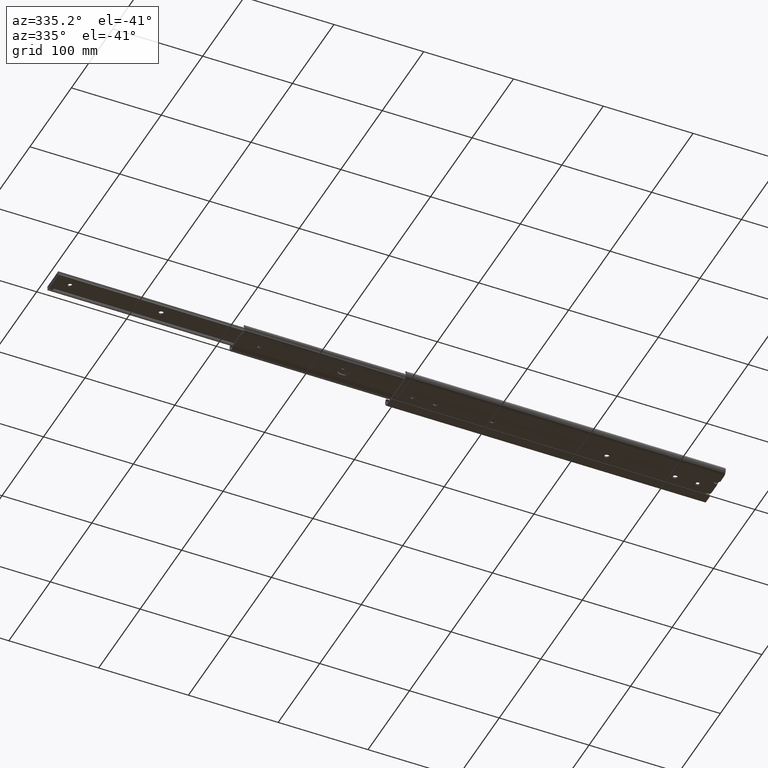
[diagram: clean part render]
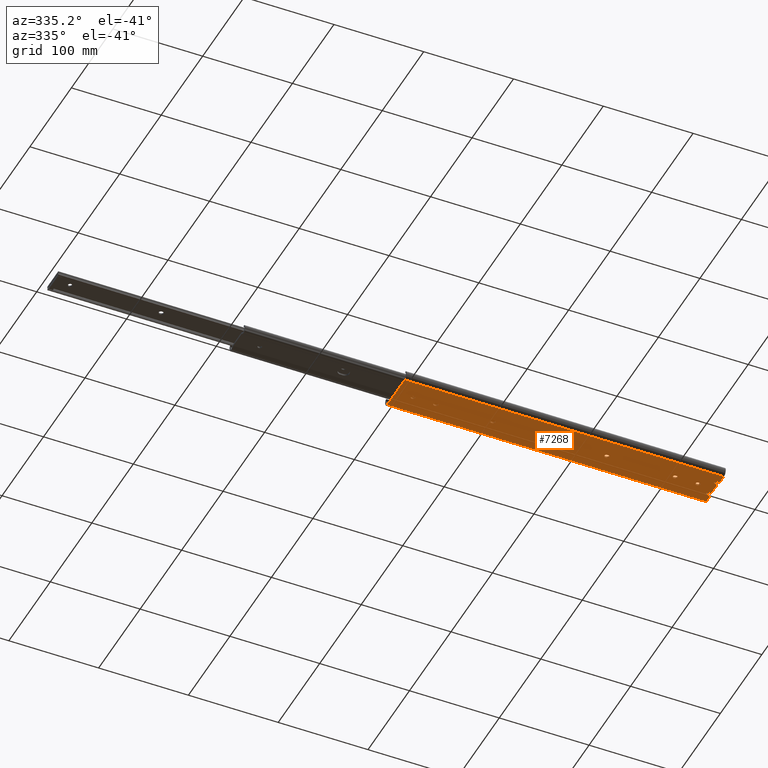
[diagram: same view with one face highlighted and labeled with its STEP entity id]
A machine part, auxiliary view. The second image highlights one B-rep face of the part: STEP entity #7268.
In plain terms, the highlighted planar face has unit normal (0, 0, 1).
Its self-contained STEP definition (entity closure, byte-faithful):
#10 = VERTEX_POINT ( 'NONE', #1489 ) ;
#30 = AXIS2_PLACEMENT_3D ( 'NONE', #6295, #2678, #6875 ) ;
#41 = DIRECTION ( 'NONE',  ( 0.0000000000000000000, 0.0000000000000000000, 1.000000000000000000 ) ) ;
#44 = ORIENTED_EDGE ( 'NONE', *, *, #5658, .F. ) ;
#54 = DIRECTION ( 'NONE',  ( 0.0000000000000000000, 1.000000000000000000, 0.0000000000000000000 ) ) ;
#74 = CARTESIAN_POINT ( 'NONE',  ( 108.3999999999999900, 5.374174154884625500E-015, 0.0000000000000000000 ) ) ;
#80 = CARTESIAN_POINT ( 'NONE',  ( 235.4000000000000100, 5.374174154884625500E-015, 0.0000000000000000000 ) ) ;
#108 = DIRECTION ( 'NONE',  ( -1.000000000000000000, 5.102127870520000300E-016, 0.0000000000000000000 ) ) ;
#123 = DIRECTION ( 'NONE',  ( 1.000000000000000000, 0.0000000000000000000, 0.0000000000000000000 ) ) ;
#140 = LINE ( 'NONE', #7764, #1760 ) ;
#206 = DIRECTION ( 'NONE',  ( 0.0000000000000000000, 0.0000000000000000000, 1.000000000000000000 ) ) ;
#235 = ORIENTED_EDGE ( 'NONE', *, *, #5246, .T. ) ;
#241 = DIRECTION ( 'NONE',  ( 1.000000000000000000, 0.0000000000000000000, 0.0000000000000000000 ) ) ;
#244 = CARTESIAN_POINT ( 'NONE',  ( 107.5999999999999900, 5.325188282918731300E-015, 0.0000000000000000000 ) ) ;
#247 = VECTOR ( 'NONE', #6794, 1000.000000000000000 ) ;
#283 = CARTESIAN_POINT ( 'NONE',  ( 354.6999999999999900, 7.349999999999999600, 0.0000000000000000000 ) ) ;
#297 = EDGE_CURVE ( 'NONE', #6652, #2427, #6951, .T. ) ;
#303 = LINE ( 'NONE', #2958, #3525 ) ;
#305 = CARTESIAN_POINT ( 'NONE',  ( 107.5999999999999900, 2.250000000000000000, 0.0000000000000000000 ) ) ;
#314 = CARTESIAN_POINT ( 'NONE',  ( 311.5999999999999700, -2.249999999999994700, 0.0000000000000000000 ) ) ;
#329 = CARTESIAN_POINT ( 'NONE',  ( 337.0000000000000000, 5.374174154884625500E-015, 0.0000000000000000000 ) ) ;
#333 = CARTESIAN_POINT ( 'NONE',  ( 235.4000000000000100, 2.250000000000000000, 0.0000000000000000000 ) ) ;
#340 = EDGE_CURVE ( 'NONE', #7705, #2192, #1934, .T. ) ;
#349 = CARTESIAN_POINT ( 'NONE',  ( 354.6999999999999900, -7.349999999999999600, 0.0000000000000000000 ) ) ;
#362 = AXIS2_PLACEMENT_3D ( 'NONE', #5942, #2322, #6551 ) ;
#363 = ORIENTED_EDGE ( 'NONE', *, *, #1802, .T. ) ;
#366 = FACE_BOUND ( 'NONE', #2218, .T. ) ;
#387 = DIRECTION ( 'NONE',  ( 0.0000000000000000000, 0.0000000000000000000, 1.000000000000000000 ) ) ;
#466 = VERTEX_POINT ( 'NONE', #6326 ) ;
#519 = DIRECTION ( 'NONE',  ( -0.0000000000000000000, -0.0000000000000000000, -1.000000000000000000 ) ) ;
#554 = EDGE_CURVE ( 'NONE', #3889, #6654, #790, .T. ) ;
#555 = VERTEX_POINT ( 'NONE', #1237 ) ;
#558 = FACE_BOUND ( 'NONE', #2100, .T. ) ;
#565 = ORIENTED_EDGE ( 'NONE', *, *, #5283, .T. ) ;
#608 = AXIS2_PLACEMENT_3D ( 'NONE', #6606, #5415, #1163 ) ;
#632 = VERTEX_POINT ( 'NONE', #7319 ) ;
#641 = CARTESIAN_POINT ( 'NONE',  ( 352.1999999999999900, -7.349999999999999600, 0.0000000000000000000 ) ) ;
#650 = AXIS2_PLACEMENT_3D ( 'NONE', #4810, #1179, #5435 ) ;
#664 = VERTEX_POINT ( 'NONE', #3169 ) ;
#677 = EDGE_CURVE ( 'NONE', #4819, #3727, #2944, .T. ) ;
#686 = VERTEX_POINT ( 'NONE', #2579 ) ;
#692 = DIRECTION ( 'NONE',  ( 1.000000000000000000, 0.0000000000000000000, 0.0000000000000000000 ) ) ;
#697 = DIRECTION ( 'NONE',  ( 1.000000000000000000, 0.0000000000000000000, 0.0000000000000000000 ) ) ;
#707 = EDGE_CURVE ( 'NONE', #632, #7287, #4167, .T. ) ;
#710 = ORIENTED_EDGE ( 'NONE', *, *, #5827, .T. ) ;
#735 = ORIENTED_EDGE ( 'NONE', *, *, #4755, .F. ) ;
#738 = FACE_BOUND ( 'NONE', #6088, .T. ) ;
#740 = CARTESIAN_POINT ( 'NONE',  ( 310.7999999999999500, -2.250000000000000000, 0.0000000000000000000 ) ) ;
#787 = VERTEX_POINT ( 'NONE', #1279 ) ;
#790 = CIRCLE ( 'NONE', #608, 2.250000000000001800 ) ;
#811 = CARTESIAN_POINT ( 'NONE',  ( 310.7999999999999500, -2.250000000000000000, 0.0000000000000000000 ) ) ;
#823 = EDGE_LOOP ( 'NONE', ( #7429, #4286, #7693, #7334, #5019 ) ) ;
#861 = DIRECTION ( 'NONE',  ( 1.000000000000000000, 0.0000000000000000000, 0.0000000000000000000 ) ) ;
#927 = DIRECTION ( 'NONE',  ( 0.0000000000000000000, 1.000000000000000000, 0.0000000000000000000 ) ) ;
#948 = DIRECTION ( 'NONE',  ( 1.000000000000000000, 0.0000000000000000000, 0.0000000000000000000 ) ) ;
#969 = VECTOR ( 'NONE', #1588, 1000.000000000000000 ) ;
#984 = AXIS2_PLACEMENT_3D ( 'NONE', #2725, #6938, #3317 ) ;
#992 = AXIS2_PLACEMENT_3D ( 'NONE', #3162, #7388, #3767 ) ;
#1009 = ORIENTED_EDGE ( 'NONE', *, *, #1147, .F. ) ;
#1010 = ORIENTED_EDGE ( 'NONE', *, *, #297, .T. ) ;
#1032 = AXIS2_PLACEMENT_3D ( 'NONE', #6221, #2601, #6802 ) ;
#1080 = AXIS2_PLACEMENT_3D ( 'NONE', #329, #4582, #948 ) ;
#1094 = VERTEX_POINT ( 'NONE', #6650 ) ;
#1138 = DIRECTION ( 'NONE',  ( 1.000000000000000000, 0.0000000000000000000, 0.0000000000000000000 ) ) ;
#1147 = EDGE_CURVE ( 'NONE', #2517, #7010, #6155, .T. ) ;
#1157 = VERTEX_POINT ( 'NONE', #6701 ) ;
#1162 = DIRECTION ( 'NONE',  ( -1.000000000000000000, -0.0000000000000000000, -0.0000000000000000000 ) ) ;
#1163 = DIRECTION ( 'NONE',  ( 1.000000000000000000, 0.0000000000000000000, 0.0000000000000000000 ) ) ;
#1167 = EDGE_CURVE ( 'NONE', #4542, #5247, #1315, .T. ) ;
#1174 = AXIS2_PLACEMENT_3D ( 'NONE', #7165, #3555, #7773 ) ;
#1179 = DIRECTION ( 'NONE',  ( 0.0000000000000000000, 0.0000000000000000000, 1.000000000000000000 ) ) ;
#1203 = CARTESIAN_POINT ( 'NONE',  ( 310.7999999999999500, 5.325188282918731300E-015, 0.0000000000000000000 ) ) ;
#1237 = CARTESIAN_POINT ( 'NONE',  ( 350.1999999999999900, -9.349999999999999600, 0.0000000000000000000 ) ) ;
#1241 = LINE ( 'NONE', #2226, #2681 ) ;
#1274 = CARTESIAN_POINT ( 'NONE',  ( 352.1999999999999900, -9.349999999999999600, 0.0000000000000000000 ) ) ;
#1279 = CARTESIAN_POINT ( 'NONE',  ( 355.6000000000000200, -13.34999999999999800, 0.0000000000000000000 ) ) ;
#1287 = CIRCLE ( 'NONE', #30, 2.249999999999974200 ) ;
#1315 = CIRCLE ( 'NONE', #5213, 2.250000000000001800 ) ;
#1335 = EDGE_LOOP ( 'NONE', ( #44, #2311, #5457, #235, #2739, #7566, #735, #5588, #4183, #6339, #1852, #5055, #4115, #1009, #1918, #3447 ) ) ;
#1343 = EDGE_CURVE ( 'NONE', #3120, #5017, #6251, .T. ) ;
#1365 = DIRECTION ( 'NONE',  ( 0.0000000000000000000, 0.0000000000000000000, 1.000000000000000000 ) ) ;
#1398 = EDGE_CURVE ( 'NONE', #5916, #4819, #7454, .T. ) ;
#1401 = LINE ( 'NONE', #6402, #7635 ) ;
#1483 = ORIENTED_EDGE ( 'NONE', *, *, #5015, .T. ) ;
#1485 = EDGE_CURVE ( 'NONE', #3300, #1094, #3674, .T. ) ;
#1489 = CARTESIAN_POINT ( 'NONE',  ( 353.6000000000000200, 11.34999999999999800, 0.0000000000000000000 ) ) ;
#1534 = PLANE ( 'NONE',  #6205 ) ;
#1571 = CARTESIAN_POINT ( 'NONE',  ( 350.1999999999999900, 9.349999999999999600, 0.0000000000000000000 ) ) ;
#1588 = DIRECTION ( 'NONE',  ( -1.000000000000000000, -5.102127870520000300E-016, 0.0000000000000000000 ) ) ;
#1651 = LINE ( 'NONE', #3355, #6083 ) ;
#1703 = VERTEX_POINT ( 'NONE', #7399 ) ;
#1717 = VECTOR ( 'NONE', #6856, 1000.000000000000000 ) ;
#1760 = VECTOR ( 'NONE', #1138, 1000.000000000000000 ) ;
#1777 = AXIS2_PLACEMENT_3D ( 'NONE', #7491, #3876, #241 ) ;
#1791 = AXIS2_PLACEMENT_3D ( 'NONE', #2625, #6830, #3212 ) ;
#1802 = EDGE_CURVE ( 'NONE', #6255, #6652, #6432, .T. ) ;
#1815 = VECTOR ( 'NONE', #108, 1000.000000000000000 ) ;
#1816 = DIRECTION ( 'NONE',  ( 1.000000000000000000, 0.0000000000000000000, 0.0000000000000000000 ) ) ;
#1820 = CARTESIAN_POINT ( 'NONE',  ( 352.1999999999999900, -7.350000000000000500, 0.0000000000000000000 ) ) ;
#1823 = EDGE_CURVE ( 'NONE', #5027, #7287, #1401, .T. ) ;
#1852 = ORIENTED_EDGE ( 'NONE', *, *, #677, .T. ) ;
#1884 = DIRECTION ( 'NONE',  ( 1.000000000000000000, 0.0000000000000000000, 0.0000000000000000000 ) ) ;
#1906 = CIRCLE ( 'NONE', #3044, 2.250000000000001800 ) ;
#1918 = ORIENTED_EDGE ( 'NONE', *, *, #3471, .F. ) ;
#1934 = LINE ( 'NONE', #4565, #3357 ) ;
#1976 = FACE_BOUND ( 'NONE', #823, .T. ) ;
#2014 = EDGE_CURVE ( 'NONE', #5511, #787, #7727, .T. ) ;
#2096 = CIRCLE ( 'NONE', #1791, 2.000000000000001800 ) ;
#2100 = EDGE_LOOP ( 'NONE', ( #6670, #6457, #5701, #2812, #2682 ) ) ;
#2107 = LINE ( 'NONE', #6958, #6729 ) ;
#2133 = VECTOR ( 'NONE', #5195, 1000.000000000000000 ) ;
#2156 = EDGE_CURVE ( 'NONE', #4874, #686, #6738, .T. ) ;
#2178 = LINE ( 'NONE', #305, #6786 ) ;
#2192 = VERTEX_POINT ( 'NONE', #4348 ) ;
#2217 = EDGE_CURVE ( 'NONE', #3490, #4770, #3339, .T. ) ;
#2218 = EDGE_LOOP ( 'NONE', ( #565, #3012 ) ) ;
#2226 = CARTESIAN_POINT ( 'NONE',  ( 336.1999999999999900, -2.250000000000000000, 0.0000000000000000000 ) ) ;
#2283 = VERTEX_POINT ( 'NONE', #6265 ) ;
#2295 = CARTESIAN_POINT ( 'NONE',  ( 16.85000000000000500, 0.0000000000000000000, 0.0000000000000000000 ) ) ;
#2311 = ORIENTED_EDGE ( 'NONE', *, *, #2014, .T. ) ;
#2322 = DIRECTION ( 'NONE',  ( -0.0000000000000000000, -0.0000000000000000000, -1.000000000000000000 ) ) ;
#2325 = CARTESIAN_POINT ( 'NONE',  ( 310.7999999999999500, 5.325188282918731300E-015, 0.0000000000000000000 ) ) ;
#2350 = AXIS2_PLACEMENT_3D ( 'NONE', #1203, #5464, #1816 ) ;
#2377 = CARTESIAN_POINT ( 'NONE',  ( 44.09999999999999400, 2.250000000000000000, 0.0000000000000000000 ) ) ;
#2427 = VERTEX_POINT ( 'NONE', #6977 ) ;
#2470 = CIRCLE ( 'NONE', #992, 2.249999999999998700 ) ;
#2517 = VERTEX_POINT ( 'NONE', #1820 ) ;
#2558 = CARTESIAN_POINT ( 'NONE',  ( 355.6000000000000200, -11.35000000000000000, 0.0000000000000000000 ) ) ;
#2562 = ORIENTED_EDGE ( 'NONE', *, *, #2917, .T. ) ;
#2570 = VECTOR ( 'NONE', #7342, 1000.000000000000000 ) ;
#2579 = CARTESIAN_POINT ( 'NONE',  ( 108.3999999999999900, 2.250000000000000000, 0.0000000000000000000 ) ) ;
#2582 = LINE ( 'NONE', #5238, #969 ) ;
#2595 = CARTESIAN_POINT ( 'NONE',  ( 354.6999999999999900, 7.349999999999999600, 0.0000000000000000000 ) ) ;
#2601 = DIRECTION ( 'NONE',  ( 0.0000000000000000000, 0.0000000000000000000, 1.000000000000000000 ) ) ;
#2625 = CARTESIAN_POINT ( 'NONE',  ( 352.1999999999999900, -9.349999999999999600, 0.0000000000000000000 ) ) ;
#2651 = AXIS2_PLACEMENT_3D ( 'NONE', #7291, #41, #4285 ) ;
#2678 = DIRECTION ( 'NONE',  ( 0.0000000000000000000, 0.0000000000000000000, 1.000000000000000000 ) ) ;
#2681 = VECTOR ( 'NONE', #4658, 1000.000000000000000 ) ;
#2682 = ORIENTED_EDGE ( 'NONE', *, *, #7259, .T. ) ;
#2689 = EDGE_CURVE ( 'NONE', #6654, #7705, #4759, .T. ) ;
#2717 = VECTOR ( 'NONE', #927, 1000.000000000000000 ) ;
#2725 = CARTESIAN_POINT ( 'NONE',  ( 352.1999999999999900, 9.349999999999999600, 0.0000000000000000000 ) ) ;
#2739 = ORIENTED_EDGE ( 'NONE', *, *, #1823, .T. ) ;
#2747 = DIRECTION ( 'NONE',  ( 1.000000000000000000, 0.0000000000000000000, -0.0000000000000000000 ) ) ;
#2812 = ORIENTED_EDGE ( 'NONE', *, *, #2156, .T. ) ;
#2858 = CARTESIAN_POINT ( 'NONE',  ( 108.3999999999999900, -2.249999999999994700, 0.0000000000000000000 ) ) ;
#2917 = EDGE_CURVE ( 'NONE', #1157, #6255, #1241, .T. ) ;
#2934 = DIRECTION ( 'NONE',  ( 1.000000000000000000, 0.0000000000000000000, 0.0000000000000000000 ) ) ;
#2944 = CIRCLE ( 'NONE', #2651, 2.000000000000001800 ) ;
#2958 = CARTESIAN_POINT ( 'NONE',  ( 234.5999999999999900, 2.250000000000000000, 0.0000000000000000000 ) ) ;
#2990 = LINE ( 'NONE', #2377, #4613 ) ;
#2992 = CARTESIAN_POINT ( 'NONE',  ( 107.5999999999999900, 5.325188282918731300E-015, 0.0000000000000000000 ) ) ;
#2998 = AXIS2_PLACEMENT_3D ( 'NONE', #2992, #7216, #3596 ) ;
#3012 = ORIENTED_EDGE ( 'NONE', *, *, #3405, .T. ) ;
#3044 = AXIS2_PLACEMENT_3D ( 'NONE', #5004, #1365, #5626 ) ;
#3115 = VECTOR ( 'NONE', #6103, 1000.000000000000000 ) ;
#3120 = VERTEX_POINT ( 'NONE', #5286 ) ;
#3156 = ORIENTED_EDGE ( 'NONE', *, *, #3291, .T. ) ;
#3162 = CARTESIAN_POINT ( 'NONE',  ( 19.10000000000000100, 0.0000000000000000000, 0.0000000000000000000 ) ) ;
#3169 = CARTESIAN_POINT ( 'NONE',  ( 355.6000000000000200, 13.34999999999999800, 0.0000000000000000000 ) ) ;
#3171 = VERTEX_POINT ( 'NONE', #4105 ) ;
#3181 = CARTESIAN_POINT ( 'NONE',  ( 44.09999999999997300, 2.250000000000000000, 0.0000000000000000000 ) ) ;
#3212 = DIRECTION ( 'NONE',  ( 1.000000000000000000, 0.0000000000000000000, 0.0000000000000000000 ) ) ;
#3218 = CIRCLE ( 'NONE', #2350, 2.249999999999974200 ) ;
#3277 = LINE ( 'NONE', #2595, #247 ) ;
#3291 = EDGE_CURVE ( 'NONE', #1703, #466, #3218, .T. ) ;
#3300 = VERTEX_POINT ( 'NONE', #6048 ) ;
#3308 = VERTEX_POINT ( 'NONE', #4844 ) ;
#3312 = LINE ( 'NONE', #5675, #1717 ) ;
#3317 = DIRECTION ( 'NONE',  ( 1.000000000000000000, 0.0000000000000000000, 0.0000000000000000000 ) ) ;
#3339 = LINE ( 'NONE', #740, #6379 ) ;
#3342 = DIRECTION ( 'NONE',  ( -1.000000000000000000, -0.0000000000000000000, -0.0000000000000000000 ) ) ;
#3350 = CARTESIAN_POINT ( 'NONE',  ( 0.0000000000000000000, 21.29985872422196600, 8.673617379884035500E-016 ) ) ;
#3355 = CARTESIAN_POINT ( 'NONE',  ( 355.6000000000000200, -21.29985872422196600, 8.673617379884035500E-016 ) ) ;
#3357 = VECTOR ( 'NONE', #123, 1000.000000000000000 ) ;
#3405 = EDGE_CURVE ( 'NONE', #2283, #7131, #2470, .T. ) ;
#3447 = ORIENTED_EDGE ( 'NONE', *, *, #6279, .F. ) ;
#3471 = EDGE_CURVE ( 'NONE', #555, #2517, #2096, .T. ) ;
#3487 = VERTEX_POINT ( 'NONE', #4437 ) ;
#3490 = VERTEX_POINT ( 'NONE', #811 ) ;
#3497 = EDGE_CURVE ( 'NONE', #3171, #4542, #3312, .T. ) ;
#3525 = VECTOR ( 'NONE', #3560, 1000.000000000000000 ) ;
#3555 = DIRECTION ( 'NONE',  ( 0.0000000000000000000, 0.0000000000000000000, 1.000000000000000000 ) ) ;
#3560 = DIRECTION ( 'NONE',  ( -1.000000000000000000, -0.0000000000000000000, -0.0000000000000000000 ) ) ;
#3582 = CARTESIAN_POINT ( 'NONE',  ( 232.3499999999999900, 5.325188282918731300E-015, 0.0000000000000000000 ) ) ;
#3585 = FACE_OUTER_BOUND ( 'NONE', #1335, .T. ) ;
#3596 = DIRECTION ( 'NONE',  ( 1.000000000000000000, 0.0000000000000000000, 0.0000000000000000000 ) ) ;
#3609 = CARTESIAN_POINT ( 'NONE',  ( 353.6000000000000200, -11.34999999999999800, 0.0000000000000000000 ) ) ;
#3674 = CIRCLE ( 'NONE', #2998, 2.250000000000001800 ) ;
#3690 = CARTESIAN_POINT ( 'NONE',  ( 355.6000000000000200, 0.0000000000000000000, 0.0000000000000000000 ) ) ;
#3727 = VERTEX_POINT ( 'NONE', #5897 ) ;
#3767 = DIRECTION ( 'NONE',  ( 1.000000000000000000, 0.0000000000000000000, 0.0000000000000000000 ) ) ;
#3842 = CARTESIAN_POINT ( 'NONE',  ( 311.5999999999999700, 5.374174154884625500E-015, 0.0000000000000000000 ) ) ;
#3865 = AXIS2_PLACEMENT_3D ( 'NONE', #3842, #206, #4453 ) ;
#3868 = CIRCLE ( 'NONE', #362, 2.000000000000001800 ) ;
#3876 = DIRECTION ( 'NONE',  ( 0.0000000000000000000, 0.0000000000000000000, 1.000000000000000000 ) ) ;
#3882 = EDGE_CURVE ( 'NONE', #4744, #7010, #3277, .T. ) ;
#3889 = VERTEX_POINT ( 'NONE', #3181 ) ;
#3896 = VECTOR ( 'NONE', #7248, 1000.000000000000000 ) ;
#3917 = ORIENTED_EDGE ( 'NONE', *, *, #2217, .T. ) ;
#3937 = DIRECTION ( 'NONE',  ( -1.000000000000000000, -0.0000000000000000000, -0.0000000000000000000 ) ) ;
#3942 = EDGE_CURVE ( 'NONE', #4615, #1157, #1287, .T. ) ;
#3957 = CARTESIAN_POINT ( 'NONE',  ( 352.1999999999999900, 11.34999999999999800, 0.0000000000000000000 ) ) ;
#4014 = CARTESIAN_POINT ( 'NONE',  ( 19.10000000000000100, 0.0000000000000000000, 0.0000000000000000000 ) ) ;
#4040 = ORIENTED_EDGE ( 'NONE', *, *, #3497, .T. ) ;
#4105 = CARTESIAN_POINT ( 'NONE',  ( 234.5999999999999900, -2.250000000000000000, 0.0000000000000000000 ) ) ;
#4115 = ORIENTED_EDGE ( 'NONE', *, *, #3882, .T. ) ;
#4129 = CARTESIAN_POINT ( 'NONE',  ( 41.84999999999999400, 5.325188282918731300E-015, 0.0000000000000000000 ) ) ;
#4132 = LINE ( 'NONE', #4559, #2717 ) ;
#4142 = CARTESIAN_POINT ( 'NONE',  ( 353.6000000000000200, -13.34999999999999800, 0.0000000000000000000 ) ) ;
#4167 = LINE ( 'NONE', #5681, #2570 ) ;
#4183 = ORIENTED_EDGE ( 'NONE', *, *, #5944, .T. ) ;
#4206 = CIRCLE ( 'NONE', #650, 2.249999999999974200 ) ;
#4286 = ORIENTED_EDGE ( 'NONE', *, *, #2689, .T. ) ;
#4285 = DIRECTION ( 'NONE',  ( 1.000000000000000000, 0.0000000000000000000, 0.0000000000000000000 ) ) ;
#4296 = ORIENTED_EDGE ( 'NONE', *, *, #7721, .T. ) ;
#4322 = DIRECTION ( 'NONE',  ( 0.0000000000000000000, 0.0000000000000000000, 1.000000000000000000 ) ) ;
#4324 = DIRECTION ( 'NONE',  ( 0.0000000000000000000, 0.0000000000000000000, 1.000000000000000000 ) ) ;
#4348 = CARTESIAN_POINT ( 'NONE',  ( 44.90000000000000600, -2.249999999999994700, 0.0000000000000000000 ) ) ;
#4358 = VECTOR ( 'NONE', #54, 1000.000000000000000 ) ;
#4437 = CARTESIAN_POINT ( 'NONE',  ( 311.5999999999999700, 2.250000000000000000, 0.0000000000000000000 ) ) ;
#4443 = EDGE_LOOP ( 'NONE', ( #3156, #7711, #3917, #4296, #710 ) ) ;
#4453 = DIRECTION ( 'NONE',  ( 1.000000000000000000, 0.0000000000000000000, 0.0000000000000000000 ) ) ;
#4462 = AXIS2_PLACEMENT_3D ( 'NONE', #2325, #6558, #2934 ) ;
#4476 = AXIS2_PLACEMENT_3D ( 'NONE', #244, #4495, #861 ) ;
#4489 = EDGE_CURVE ( 'NONE', #1094, #4874, #140, .T. ) ;
#4495 = DIRECTION ( 'NONE',  ( 0.0000000000000000000, 0.0000000000000000000, 1.000000000000000000 ) ) ;
#4526 = EDGE_CURVE ( 'NONE', #3308, #3889, #2990, .T. ) ;
#4542 = VERTEX_POINT ( 'NONE', #4814 ) ;
#4551 = CARTESIAN_POINT ( 'NONE',  ( 355.6000000000000200, 0.0000000000000000000, 0.0000000000000000000 ) ) ;
#4559 = CARTESIAN_POINT ( 'NONE',  ( 355.6000000000000200, 0.0000000000000000000, 0.0000000000000000000 ) ) ;
#4565 = CARTESIAN_POINT ( 'NONE',  ( 44.09999999999999400, -2.250000000000000000, 0.0000000000000000000 ) ) ;
#4582 = DIRECTION ( 'NONE',  ( 0.0000000000000000000, 0.0000000000000000000, 1.000000000000000000 ) ) ;
#4605 = DIRECTION ( 'NONE',  ( 0.0000000000000000000, 1.000000000000000000, 0.0000000000000000000 ) ) ;
#4613 = VECTOR ( 'NONE', #1162, 1000.000000000000000 ) ;
#4615 = VERTEX_POINT ( 'NONE', #6805 ) ;
#4626 = DIRECTION ( 'NONE',  ( 1.000000000000000000, 0.0000000000000000000, 0.0000000000000000000 ) ) ;
#4658 = DIRECTION ( 'NONE',  ( 1.000000000000000000, 0.0000000000000000000, 0.0000000000000000000 ) ) ;
#4663 = ORIENTED_EDGE ( 'NONE', *, *, #1167, .T. ) ;
#4744 = VERTEX_POINT ( 'NONE', #283 ) ;
#4755 = EDGE_CURVE ( 'NONE', #664, #632, #4132, .T. ) ;
#4758 = DIRECTION ( 'NONE',  ( 1.000000000000000000, 0.0000000000000000000, 0.0000000000000000000 ) ) ;
#4759 = CIRCLE ( 'NONE', #1032, 2.250000000000001800 ) ;
#4770 = VERTEX_POINT ( 'NONE', #314 ) ;
#4810 = CARTESIAN_POINT ( 'NONE',  ( 336.1999999999999900, 5.325188282918731300E-015, 0.0000000000000000000 ) ) ;
#4814 = CARTESIAN_POINT ( 'NONE',  ( 235.4000000000000100, -2.249999999999994700, 0.0000000000000000000 ) ) ;
#4819 = VERTEX_POINT ( 'NONE', #1571 ) ;
#4844 = CARTESIAN_POINT ( 'NONE',  ( 44.90000000000000600, 2.250000000000000000, 0.0000000000000000000 ) ) ;
#4874 = VERTEX_POINT ( 'NONE', #2858 ) ;
#4960 = EDGE_CURVE ( 'NONE', #466, #3490, #6011, .T. ) ;
#4997 = DIRECTION ( 'NONE',  ( 1.000000000000000000, 0.0000000000000000000, 0.0000000000000000000 ) ) ;
#5004 = CARTESIAN_POINT ( 'NONE',  ( 234.5999999999999900, 5.325188282918731300E-015, 0.0000000000000000000 ) ) ;
#5015 = EDGE_CURVE ( 'NONE', #2427, #4615, #4206, .T. ) ;
#5017 = VERTEX_POINT ( 'NONE', #3582 ) ;
#5019 = ORIENTED_EDGE ( 'NONE', *, *, #4526, .T. ) ;
#5027 = VERTEX_POINT ( 'NONE', #7206 ) ;
#5033 = CIRCLE ( 'NONE', #4476, 2.250000000000001800 ) ;
#5055 = ORIENTED_EDGE ( 'NONE', *, *, #6217, .T. ) ;
#5148 = CARTESIAN_POINT ( 'NONE',  ( 107.5999999999999900, 2.250000000000000000, 0.0000000000000000000 ) ) ;
#5149 = AXIS2_PLACEMENT_3D ( 'NONE', #4014, #387, #4626 ) ;
#5195 = DIRECTION ( 'NONE',  ( -1.000000000000000000, -0.0000000000000000000, -0.0000000000000000000 ) ) ;
#5213 = AXIS2_PLACEMENT_3D ( 'NONE', #80, #4324, #697 ) ;
#5228 = FACE_BOUND ( 'NONE', #6981, .T. ) ;
#5238 = CARTESIAN_POINT ( 'NONE',  ( 355.6000000000000200, 11.35000000000000000, 0.0000000000000000000 ) ) ;
#5246 = EDGE_CURVE ( 'NONE', #6555, #5027, #1651, .T. ) ;
#5247 = VERTEX_POINT ( 'NONE', #333 ) ;
#5283 = EDGE_CURVE ( 'NONE', #7131, #2283, #7683, .T. ) ;
#5286 = CARTESIAN_POINT ( 'NONE',  ( 234.5999999999999900, 2.250000000000000000, 0.0000000000000000000 ) ) ;
#5312 = CIRCLE ( 'NONE', #1174, 2.250000000000001800 ) ;
#5415 = DIRECTION ( 'NONE',  ( 0.0000000000000000000, 0.0000000000000000000, 1.000000000000000000 ) ) ;
#5427 = EDGE_CURVE ( 'NONE', #5247, #3120, #303, .T. ) ;
#5428 = ORIENTED_EDGE ( 'NONE', *, *, #1343, .T. ) ;
#5435 = DIRECTION ( 'NONE',  ( 1.000000000000000000, 0.0000000000000000000, 0.0000000000000000000 ) ) ;
#5457 = ORIENTED_EDGE ( 'NONE', *, *, #6723, .F. ) ;
#5464 = DIRECTION ( 'NONE',  ( 0.0000000000000000000, 0.0000000000000000000, 1.000000000000000000 ) ) ;
#5508 = CARTESIAN_POINT ( 'NONE',  ( 337.0000000000000000, -2.249999999999994700, 0.0000000000000000000 ) ) ;
#5511 = VERTEX_POINT ( 'NONE', #3609 ) ;
#5521 = LINE ( 'NONE', #6037, #3896 ) ;
#5538 = DIRECTION ( 'NONE',  ( -0.0000000000000000000, -0.0000000000000000000, -1.000000000000000000 ) ) ;
#5588 = ORIENTED_EDGE ( 'NONE', *, *, #7445, .T. ) ;
#5626 = DIRECTION ( 'NONE',  ( 1.000000000000000000, 0.0000000000000000000, 0.0000000000000000000 ) ) ;
#5641 = CARTESIAN_POINT ( 'NONE',  ( 44.09999999999999400, -2.250000000000000000, 0.0000000000000000000 ) ) ;
#5658 = EDGE_CURVE ( 'NONE', #5511, #6943, #6463, .T. ) ;
#5675 = CARTESIAN_POINT ( 'NONE',  ( 234.5999999999999900, -2.250000000000000000, 0.0000000000000000000 ) ) ;
#5681 = CARTESIAN_POINT ( 'NONE',  ( 355.6000000000000200, 21.29985872422196600, 8.673617379884035500E-016 ) ) ;
#5701 = ORIENTED_EDGE ( 'NONE', *, *, #4489, .T. ) ;
#5798 = DIRECTION ( 'NONE',  ( -1.000000000000000000, -0.0000000000000000000, -0.0000000000000000000 ) ) ;
#5802 = VERTEX_POINT ( 'NONE', #5148 ) ;
#5806 = AXIS2_PLACEMENT_3D ( 'NONE', #74, #4322, #692 ) ;
#5826 = CARTESIAN_POINT ( 'NONE',  ( 355.6000000000000200, -21.29985872422196600, 8.673617379884035500E-016 ) ) ;
#5827 = EDGE_CURVE ( 'NONE', #3487, #1703, #2107, .T. ) ;
#5839 = EDGE_CURVE ( 'NONE', #5017, #3171, #1906, .T. ) ;
#5897 = CARTESIAN_POINT ( 'NONE',  ( 352.1999999999999900, 7.350000000000000500, 0.0000000000000000000 ) ) ;
#5916 = VERTEX_POINT ( 'NONE', #3957 ) ;
#5942 = CARTESIAN_POINT ( 'NONE',  ( 353.6000000000000200, 13.34999999999999800, 0.0000000000000000000 ) ) ;
#5944 = EDGE_CURVE ( 'NONE', #10, #5916, #2582, .T. ) ;
#6011 = CIRCLE ( 'NONE', #4462, 2.249999999999974200 ) ;
#6037 = CARTESIAN_POINT ( 'NONE',  ( 352.1999999999999900, 7.349999999999999600, 0.0000000000000000000 ) ) ;
#6048 = CARTESIAN_POINT ( 'NONE',  ( 105.3499999999999900, 5.325188282918731300E-015, 0.0000000000000000000 ) ) ;
#6083 = VECTOR ( 'NONE', #5798, 1000.000000000000000 ) ;
#6088 = EDGE_LOOP ( 'NONE', ( #5428, #7554, #4040, #4663, #6750 ) ) ;
#6103 = DIRECTION ( 'NONE',  ( 1.000000000000000000, 0.0000000000000000000, 0.0000000000000000000 ) ) ;
#6141 = AXIS2_PLACEMENT_3D ( 'NONE', #1274, #5538, #1884 ) ;
#6155 = LINE ( 'NONE', #641, #3115 ) ;
#6205 = AXIS2_PLACEMENT_3D ( 'NONE', #4551, #6377, #2747 ) ;
#6217 = EDGE_CURVE ( 'NONE', #3727, #4744, #5521, .T. ) ;
#6221 = CARTESIAN_POINT ( 'NONE',  ( 44.09999999999999400, 5.325188282918731300E-015, 0.0000000000000000000 ) ) ;
#6251 = CIRCLE ( 'NONE', #1777, 2.250000000000001800 ) ;
#6255 = VERTEX_POINT ( 'NONE', #5508 ) ;
#6265 = CARTESIAN_POINT ( 'NONE',  ( 21.35000000000000100, 2.755455298081543800E-016, 0.0000000000000000000 ) ) ;
#6279 = EDGE_CURVE ( 'NONE', #6943, #555, #6907, .T. ) ;
#6295 = CARTESIAN_POINT ( 'NONE',  ( 336.1999999999999900, 5.325188282918731300E-015, 0.0000000000000000000 ) ) ;
#6326 = CARTESIAN_POINT ( 'NONE',  ( 308.5500000000000100, 5.325188282918731300E-015, 0.0000000000000000000 ) ) ;
#6339 = ORIENTED_EDGE ( 'NONE', *, *, #1398, .T. ) ;
#6377 = DIRECTION ( 'NONE',  ( 0.0000000000000000000, 0.0000000000000000000, 1.000000000000000000 ) ) ;
#6379 = VECTOR ( 'NONE', #4997, 1000.000000000000000 ) ;
#6402 = CARTESIAN_POINT ( 'NONE',  ( 0.0000000000000000000, 0.0000000000000000000, 0.0000000000000000000 ) ) ;
#6413 = CARTESIAN_POINT ( 'NONE',  ( 336.1999999999999900, 2.250000000000000000, 0.0000000000000000000 ) ) ;
#6432 = CIRCLE ( 'NONE', #1080, 2.249999999999974200 ) ;
#6457 = ORIENTED_EDGE ( 'NONE', *, *, #1485, .T. ) ;
#6463 = LINE ( 'NONE', #2558, #1815 ) ;
#6551 = DIRECTION ( 'NONE',  ( 1.000000000000000000, 0.0000000000000000000, 0.0000000000000000000 ) ) ;
#6555 = VERTEX_POINT ( 'NONE', #5826 ) ;
#6558 = DIRECTION ( 'NONE',  ( 0.0000000000000000000, 0.0000000000000000000, 1.000000000000000000 ) ) ;
#6606 = CARTESIAN_POINT ( 'NONE',  ( 44.09999999999999400, 5.325188282918731300E-015, 0.0000000000000000000 ) ) ;
#6607 = CIRCLE ( 'NONE', #3865, 2.249999999999974200 ) ;
#6614 = FACE_BOUND ( 'NONE', #4443, .T. ) ;
#6650 = CARTESIAN_POINT ( 'NONE',  ( 107.5999999999999900, -2.250000000000000000, 0.0000000000000000000 ) ) ;
#6652 = VERTEX_POINT ( 'NONE', #7726 ) ;
#6654 = VERTEX_POINT ( 'NONE', #4129 ) ;
#6670 = ORIENTED_EDGE ( 'NONE', *, *, #6919, .T. ) ;
#6701 = CARTESIAN_POINT ( 'NONE',  ( 336.1999999999999900, -2.250000000000000000, 0.0000000000000000000 ) ) ;
#6723 = EDGE_CURVE ( 'NONE', #6555, #787, #7375, .T. ) ;
#6729 = VECTOR ( 'NONE', #3342, 1000.000000000000000 ) ;
#6738 = CIRCLE ( 'NONE', #5806, 2.250000000000001800 ) ;
#6746 = AXIS2_PLACEMENT_3D ( 'NONE', #4142, #519, #4758 ) ;
#6750 = ORIENTED_EDGE ( 'NONE', *, *, #5427, .T. ) ;
#6786 = VECTOR ( 'NONE', #3937, 1000.000000000000000 ) ;
#6794 = DIRECTION ( 'NONE',  ( 0.0000000000000000000, -1.000000000000000000, 0.0000000000000000000 ) ) ;
#6802 = DIRECTION ( 'NONE',  ( 1.000000000000000000, 0.0000000000000000000, 0.0000000000000000000 ) ) ;
#6805 = CARTESIAN_POINT ( 'NONE',  ( 333.9500000000000500, 5.325188282918731300E-015, 0.0000000000000000000 ) ) ;
#6830 = DIRECTION ( 'NONE',  ( -0.0000000000000000000, -0.0000000000000000000, -1.000000000000000000 ) ) ;
#6856 = DIRECTION ( 'NONE',  ( 1.000000000000000000, 0.0000000000000000000, 0.0000000000000000000 ) ) ;
#6875 = DIRECTION ( 'NONE',  ( 1.000000000000000000, 0.0000000000000000000, 0.0000000000000000000 ) ) ;
#6907 = CIRCLE ( 'NONE', #6141, 2.000000000000001800 ) ;
#6909 = CARTESIAN_POINT ( 'NONE',  ( 352.1999999999999900, -11.34999999999999800, 0.0000000000000000000 ) ) ;
#6919 = EDGE_CURVE ( 'NONE', #5802, #3300, #5033, .T. ) ;
#6938 = DIRECTION ( 'NONE',  ( 0.0000000000000000000, 0.0000000000000000000, 1.000000000000000000 ) ) ;
#6943 = VERTEX_POINT ( 'NONE', #6909 ) ;
#6951 = LINE ( 'NONE', #6413, #2133 ) ;
#6958 = CARTESIAN_POINT ( 'NONE',  ( 310.7999999999999500, 2.250000000000000000, 0.0000000000000000000 ) ) ;
#6977 = CARTESIAN_POINT ( 'NONE',  ( 336.2000000000000500, 2.250000000000000000, 0.0000000000000000000 ) ) ;
#6979 = ORIENTED_EDGE ( 'NONE', *, *, #3942, .T. ) ;
#6981 = EDGE_LOOP ( 'NONE', ( #1483, #6979, #2562, #363, #1010 ) ) ;
#7010 = VERTEX_POINT ( 'NONE', #349 ) ;
#7131 = VERTEX_POINT ( 'NONE', #2295 ) ;
#7165 = CARTESIAN_POINT ( 'NONE',  ( 44.90000000000000600, 5.374174154884625500E-015, 0.0000000000000000000 ) ) ;
#7206 = CARTESIAN_POINT ( 'NONE',  ( 0.0000000000000000000, -21.29985872422196600, 8.673617379884035500E-016 ) ) ;
#7216 = DIRECTION ( 'NONE',  ( 0.0000000000000000000, 0.0000000000000000000, 1.000000000000000000 ) ) ;
#7248 = DIRECTION ( 'NONE',  ( 1.000000000000000000, 0.0000000000000000000, 0.0000000000000000000 ) ) ;
#7259 = EDGE_CURVE ( 'NONE', #686, #5802, #2178, .T. ) ;
#7268 = ADVANCED_FACE ( 'NONE', ( #3585, #5228, #738, #1976, #366, #558, #6614 ), #1534, .F. ) ;
#7287 = VERTEX_POINT ( 'NONE', #3350 ) ;
#7291 = CARTESIAN_POINT ( 'NONE',  ( 352.1999999999999900, 9.349999999999999600, 0.0000000000000000000 ) ) ;
#7319 = CARTESIAN_POINT ( 'NONE',  ( 355.6000000000000200, 21.29985872422196600, 8.673617379884035500E-016 ) ) ;
#7334 = ORIENTED_EDGE ( 'NONE', *, *, #7482, .T. ) ;
#7342 = DIRECTION ( 'NONE',  ( -1.000000000000000000, -0.0000000000000000000, -0.0000000000000000000 ) ) ;
#7375 = LINE ( 'NONE', #3690, #4358 ) ;
#7388 = DIRECTION ( 'NONE',  ( 0.0000000000000000000, 0.0000000000000000000, 1.000000000000000000 ) ) ;
#7399 = CARTESIAN_POINT ( 'NONE',  ( 310.7999999999999500, 2.250000000000000000, 0.0000000000000000000 ) ) ;
#7429 = ORIENTED_EDGE ( 'NONE', *, *, #554, .T. ) ;
#7445 = EDGE_CURVE ( 'NONE', #664, #10, #3868, .T. ) ;
#7454 = CIRCLE ( 'NONE', #984, 2.000000000000001800 ) ;
#7482 = EDGE_CURVE ( 'NONE', #2192, #3308, #5312, .T. ) ;
#7491 = CARTESIAN_POINT ( 'NONE',  ( 234.5999999999999900, 5.325188282918731300E-015, 0.0000000000000000000 ) ) ;
#7554 = ORIENTED_EDGE ( 'NONE', *, *, #5839, .T. ) ;
#7566 = ORIENTED_EDGE ( 'NONE', *, *, #707, .F. ) ;
#7635 = VECTOR ( 'NONE', #4605, 1000.000000000000000 ) ;
#7683 = CIRCLE ( 'NONE', #5149, 2.249999999999998700 ) ;
#7693 = ORIENTED_EDGE ( 'NONE', *, *, #340, .T. ) ;
#7705 = VERTEX_POINT ( 'NONE', #5641 ) ;
#7711 = ORIENTED_EDGE ( 'NONE', *, *, #4960, .T. ) ;
#7721 = EDGE_CURVE ( 'NONE', #4770, #3487, #6607, .T. ) ;
#7726 = CARTESIAN_POINT ( 'NONE',  ( 337.0000000000000000, 2.250000000000000000, 0.0000000000000000000 ) ) ;
#7727 = CIRCLE ( 'NONE', #6746, 2.000000000000001800 ) ;
#7764 = CARTESIAN_POINT ( 'NONE',  ( 107.5999999999999900, -2.250000000000000000, 0.0000000000000000000 ) ) ;
#7773 = DIRECTION ( 'NONE',  ( 1.000000000000000000, 0.0000000000000000000, 0.0000000000000000000 ) ) ;